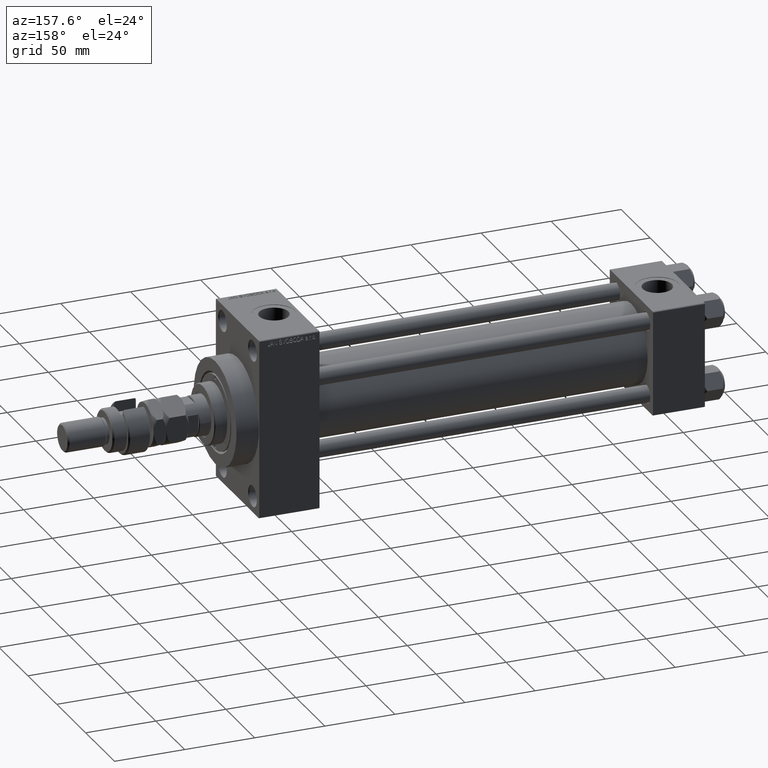
[diagram: clean part render]
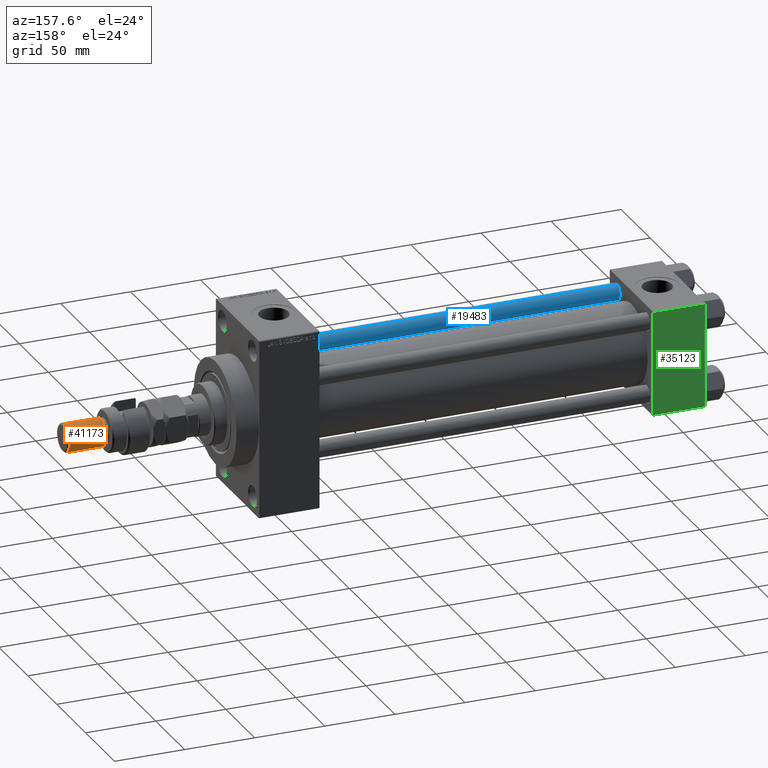
[diagram: same view with three faces highlighted in distinct colors, each labeled with its STEP entity id]
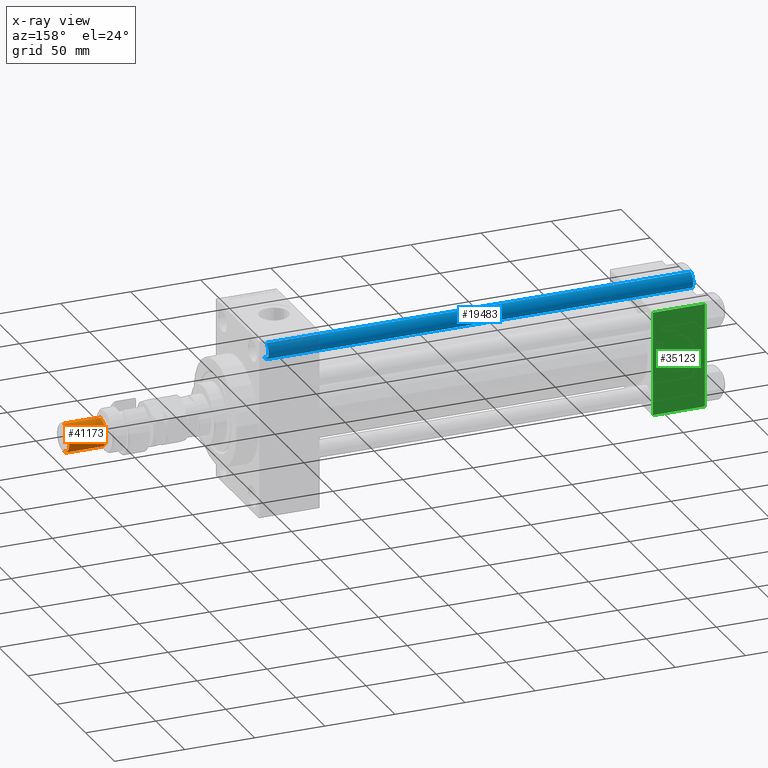
[diagram: x-ray of the same camera — body ghosted, the three highlighted faces saturated]
A machine part, auxiliary view with three faces highlighted in distinct colors.
The next image is the same camera in x-ray (body ghosted, the three faces saturated) — at least one of them is partly hidden behind the body in this view.
Their STEP definitions:

[orange] entity #41173 — the highlighted cylindrical surface (edge-blend (fillet) strip) has radius 10 mm, axis along (-1, -0, 0).
#1106 = DIRECTION ( 'NONE',  ( -1.000000000000000000, 0.000000000000000000, 0.000000000000000000 ) ) ;
#1311 = DIRECTION ( 'NONE',  ( -0.000000000000000000, -0.000000000000000000, -1.000000000000000000 ) ) ;
#3106 = LINE ( 'NONE', #30024, #35522 ) ;
#3700 = EDGE_CURVE ( 'NONE', #16770, #29111, #17318, .T. ) ;
#4936 = CYLINDRICAL_SURFACE ( 'NONE', #24008, 10.00000000000000000 ) ;
#10350 = AXIS2_PLACEMENT_3D ( 'NONE', #43727, #47770, #28703 ) ;
#14259 = CARTESIAN_POINT ( 'NONE',  ( 10.00000000000000000, 1.224646799147353256E-15, 29.00000000000000711 ) ) ;
#15725 = DIRECTION ( 'NONE',  ( -0.000000000000000000, -0.000000000000000000, 1.000000000000000000 ) ) ;
#16055 = CARTESIAN_POINT ( 'NONE',  ( -10.00000000000000000, 0.000000000000000000, 54.99999999999998579 ) ) ;
#16636 = VERTEX_POINT ( 'NONE', #37413 ) ;
#16770 = VERTEX_POINT ( 'NONE', #16055 ) ;
#16776 = ORIENTED_EDGE ( 'NONE', *, *, #46623, .T. ) ;
#17318 = LINE ( 'NONE', #28244, #36022 ) ;
#18086 = ORIENTED_EDGE ( 'NONE', *, *, #3700, .F. ) ;
#20437 = CARTESIAN_POINT ( 'NONE',  ( 0.000000000000000000, 0.000000000000000000, 56.00000000000000711 ) ) ;
#20883 = VERTEX_POINT ( 'NONE', #14259 ) ;
#22128 = CIRCLE ( 'NONE', #32669, 10.00000000000000000 ) ;
#22463 = EDGE_LOOP ( 'NONE', ( #16776, #30759, #38709, #18086 ) ) ;
#24008 = AXIS2_PLACEMENT_3D ( 'NONE', #20437, #35926, #1106 ) ;
#26890 = CARTESIAN_POINT ( 'NONE',  ( 0.000000000000000000, 0.000000000000000000, 29.00000000000000711 ) ) ;
#27402 = CIRCLE ( 'NONE', #10350, 10.00000000000000000 ) ;
#28049 = FACE_OUTER_BOUND ( 'NONE', #22463, .T. ) ;
#28244 = CARTESIAN_POINT ( 'NONE',  ( -10.00000000000000000, 0.000000000000000000, 56.00000000000000711 ) ) ;
#28703 = DIRECTION ( 'NONE',  ( 1.000000000000000000, 0.000000000000000000, 0.000000000000000000 ) ) ;
#29111 = VERTEX_POINT ( 'NONE', #45788 ) ;
#30024 = CARTESIAN_POINT ( 'NONE',  ( 10.00000000000000000, 1.224646799147353256E-15, 56.00000000000000711 ) ) ;
#30759 = ORIENTED_EDGE ( 'NONE', *, *, #49318, .T. ) ;
#31420 = EDGE_CURVE ( 'NONE', #20883, #29111, #22128, .T. ) ;
#32669 = AXIS2_PLACEMENT_3D ( 'NONE', #26890, #15725, #43153 ) ;
#35522 = VECTOR ( 'NONE', #47901, 1000.000000000000000 ) ;
#35926 = DIRECTION ( 'NONE',  ( -0.000000000000000000, -0.000000000000000000, -1.000000000000000000 ) ) ;
#36022 = VECTOR ( 'NONE', #1311, 1000.000000000000000 ) ;
#37413 = CARTESIAN_POINT ( 'NONE',  ( 10.00000000000000000, 1.224646799147353256E-15, 54.99999999999998579 ) ) ;
#38709 = ORIENTED_EDGE ( 'NONE', *, *, #31420, .T. ) ;
#41173 = ADVANCED_FACE ( 'NONE', ( #28049 ), #4936, .T. ) ;
#43153 = DIRECTION ( 'NONE',  ( 1.000000000000000000, 0.000000000000000000, 0.000000000000000000 ) ) ;
#43727 = CARTESIAN_POINT ( 'NONE',  ( 0.000000000000000000, 0.000000000000000000, 54.99999999999998579 ) ) ;
#45788 = CARTESIAN_POINT ( 'NONE',  ( -10.00000000000000000, 0.000000000000000000, 29.00000000000000711 ) ) ;
#46623 = EDGE_CURVE ( 'NONE', #16770, #16636, #27402, .T. ) ;
#47770 = DIRECTION ( 'NONE',  ( 0.000000000000000000, 0.000000000000000000, -1.000000000000000000 ) ) ;
#47901 = DIRECTION ( 'NONE',  ( -0.000000000000000000, -0.000000000000000000, -1.000000000000000000 ) ) ;
#49318 = EDGE_CURVE ( 'NONE', #16636, #20883, #3106, .T. ) ;

[blue] entity #19483 — the highlighted cylindrical surface (edge-blend (fillet) strip) has radius 6 mm, axis along (1, 0, 0).
#1121 = AXIS2_PLACEMENT_3D ( 'NONE', #28550, #9257, #36688 ) ;
#3309 = EDGE_CURVE ( 'NONE', #30546, #28479, #13300, .T. ) ;
#4923 = CYLINDRICAL_SURFACE ( 'NONE', #47720, 6.000000000000000888 ) ;
#5995 = ORIENTED_EDGE ( 'NONE', *, *, #3309, .T. ) ;
#6814 = CARTESIAN_POINT ( 'NONE',  ( -6.000000000000000888, 0.000000000000000000, 0.4999999999999449329 ) ) ;
#7578 = LINE ( 'NONE', #27371, #28662 ) ;
#7581 = EDGE_CURVE ( 'NONE', #28479, #41779, #32810, .T. ) ;
#9257 = DIRECTION ( 'NONE',  ( 0.000000000000000000, 0.000000000000000000, -1.000000000000000000 ) ) ;
#12069 = DIRECTION ( 'NONE',  ( -1.000000000000000000, 0.000000000000000000, 0.000000000000000000 ) ) ;
#12560 = FACE_OUTER_BOUND ( 'NONE', #13890, .T. ) ;
#12935 = CARTESIAN_POINT ( 'NONE',  ( 0.000000000000000000, 0.000000000000000000, 0.4999999999999449329 ) ) ;
#13300 = CIRCLE ( 'NONE', #1121, 6.000000000000000888 ) ;
#13633 = CIRCLE ( 'NONE', #30654, 6.000000000000000888 ) ;
#13890 = EDGE_LOOP ( 'NONE', ( #38842, #5995, #14931, #38941 ) ) ;
#14931 = ORIENTED_EDGE ( 'NONE', *, *, #7581, .T. ) ;
#17577 = DIRECTION ( 'NONE',  ( -0.000000000000000000, -0.000000000000000000, -1.000000000000000000 ) ) ;
#19483 = ADVANCED_FACE ( 'NONE', ( #12560 ), #4923, .T. ) ;
#20174 = DIRECTION ( 'NONE',  ( -0.000000000000000000, -0.000000000000000000, -1.000000000000000000 ) ) ;
#20422 = CARTESIAN_POINT ( 'NONE',  ( 0.000000000000000000, 0.000000000000000000, 304.0000000000000000 ) ) ;
#23835 = CARTESIAN_POINT ( 'NONE',  ( 6.000000000000000888, 7.347880794884120722E-16, 0.4999999999999449329 ) ) ;
#24638 = VERTEX_POINT ( 'NONE', #23835 ) ;
#27371 = CARTESIAN_POINT ( 'NONE',  ( 6.000000000000000888, 7.347880794884120722E-16, 304.0000000000000000 ) ) ;
#28403 = DIRECTION ( 'NONE',  ( -0.000000000000000000, -0.000000000000000000, 1.000000000000000000 ) ) ;
#28479 = VERTEX_POINT ( 'NONE', #50283 ) ;
#28550 = CARTESIAN_POINT ( 'NONE',  ( 0.000000000000000000, 0.000000000000000000, 303.5000000000000000 ) ) ;
#28662 = VECTOR ( 'NONE', #43130, 1000.000000000000000 ) ;
#28720 = VECTOR ( 'NONE', #17577, 1000.000000000000000 ) ;
#30546 = VERTEX_POINT ( 'NONE', #35264 ) ;
#30654 = AXIS2_PLACEMENT_3D ( 'NONE', #12935, #28403, #43922 ) ;
#32810 = LINE ( 'NONE', #44259, #28720 ) ;
#35264 = CARTESIAN_POINT ( 'NONE',  ( 6.000000000000000888, 7.347880794884120722E-16, 303.5000000000000000 ) ) ;
#36688 = DIRECTION ( 'NONE',  ( 1.000000000000000000, 0.000000000000000000, 0.000000000000000000 ) ) ;
#36995 = EDGE_CURVE ( 'NONE', #30546, #24638, #7578, .T. ) ;
#38842 = ORIENTED_EDGE ( 'NONE', *, *, #36995, .F. ) ;
#38941 = ORIENTED_EDGE ( 'NONE', *, *, #49833, .T. ) ;
#41779 = VERTEX_POINT ( 'NONE', #6814 ) ;
#43130 = DIRECTION ( 'NONE',  ( -0.000000000000000000, -0.000000000000000000, -1.000000000000000000 ) ) ;
#43922 = DIRECTION ( 'NONE',  ( 1.000000000000000000, 0.000000000000000000, 0.000000000000000000 ) ) ;
#44259 = CARTESIAN_POINT ( 'NONE',  ( -6.000000000000000888, 0.000000000000000000, 304.0000000000000000 ) ) ;
#47720 = AXIS2_PLACEMENT_3D ( 'NONE', #20422, #20174, #12069 ) ;
#49833 = EDGE_CURVE ( 'NONE', #41779, #24638, #13633, .T. ) ;
#50283 = CARTESIAN_POINT ( 'NONE',  ( -6.000000000000000888, 0.000000000000000000, 303.5000000000000000 ) ) ;

[green] entity #35123 — the highlighted planar face has unit normal (0, 1, 0).
#1447 = EDGE_CURVE ( 'NONE', #2928, #15616, #47173, .T. ) ;
#1869 = CARTESIAN_POINT ( 'NONE',  ( 0.000000000000000000, 37.49999999999999289, -36.99999999999998579 ) ) ;
#2131 = VECTOR ( 'NONE', #32163, 1000.000000000000000 ) ;
#2928 = VERTEX_POINT ( 'NONE', #10945 ) ;
#6701 = ORIENTED_EDGE ( 'NONE', *, *, #12687, .T. ) ;
#7521 = LINE ( 'NONE', #43319, #10034 ) ;
#10034 = VECTOR ( 'NONE', #15153, 1000.000000000000000 ) ;
#10945 = CARTESIAN_POINT ( 'NONE',  ( 0.000000000000000000, 37.49999999999999289, 37.00000000000000000 ) ) ;
#12381 = CARTESIAN_POINT ( 'NONE',  ( 0.000000000000000000, 37.49999999999999289, 37.50000000000000000 ) ) ;
#12470 = LINE ( 'NONE', #27946, #37326 ) ;
#12687 = EDGE_CURVE ( 'NONE', #47744, #25572, #38807, .T. ) ;
#15153 = DIRECTION ( 'NONE',  ( 1.000000000000000000, 0.000000000000000000, 0.000000000000000000 ) ) ;
#15286 = DIRECTION ( 'NONE',  ( 0.000000000000000000, -0.000000000000000000, 1.000000000000000000 ) ) ;
#15616 = VERTEX_POINT ( 'NONE', #1869 ) ;
#19215 = ORIENTED_EDGE ( 'NONE', *, *, #1447, .F. ) ;
#20334 = DIRECTION ( 'NONE',  ( -1.000000000000000000, 0.000000000000000000, 0.000000000000000000 ) ) ;
#25166 = EDGE_CURVE ( 'NONE', #25572, #15616, #12470, .T. ) ;
#25572 = VERTEX_POINT ( 'NONE', #32705 ) ;
#27946 = CARTESIAN_POINT ( 'NONE',  ( 37.00000000000000000, 37.49999999999999289, -36.99999999999998579 ) ) ;
#30103 = EDGE_LOOP ( 'NONE', ( #6701, #43136, #19215, #45682 ) ) ;
#30237 = CARTESIAN_POINT ( 'NONE',  ( 37.00000000000000000, 37.49999999999999289, 37.50000000000000000 ) ) ;
#30249 = VECTOR ( 'NONE', #39566, 1000.000000000000000 ) ;
#30377 = AXIS2_PLACEMENT_3D ( 'NONE', #30237, #45499, #15286 ) ;
#32163 = DIRECTION ( 'NONE',  ( 0.000000000000000000, 0.000000000000000000, -1.000000000000000000 ) ) ;
#32705 = CARTESIAN_POINT ( 'NONE',  ( 37.00000000000000000, 37.49999999999999289, -36.99999999999998579 ) ) ;
#34070 = PLANE ( 'NONE',  #30377 ) ;
#35123 = ADVANCED_FACE ( 'NONE', ( #46269 ), #34070, .T. ) ;
#35721 = CARTESIAN_POINT ( 'NONE',  ( 37.00000000000000000, 37.49999999999999289, 37.00000000000000000 ) ) ;
#37326 = VECTOR ( 'NONE', #20334, 1000.000000000000000 ) ;
#37457 = EDGE_CURVE ( 'NONE', #2928, #47744, #7521, .T. ) ;
#38807 = LINE ( 'NONE', #39305, #2131 ) ;
#39305 = CARTESIAN_POINT ( 'NONE',  ( 37.00000000000000000, 37.49999999999999289, 37.50000000000000000 ) ) ;
#39566 = DIRECTION ( 'NONE',  ( 0.000000000000000000, 0.000000000000000000, -1.000000000000000000 ) ) ;
#43136 = ORIENTED_EDGE ( 'NONE', *, *, #25166, .T. ) ;
#43319 = CARTESIAN_POINT ( 'NONE',  ( 37.00000000000000000, 37.49999999999999289, 37.00000000000000000 ) ) ;
#45499 = DIRECTION ( 'NONE',  ( -0.000000000000000000, 1.000000000000000000, 0.000000000000000000 ) ) ;
#45682 = ORIENTED_EDGE ( 'NONE', *, *, #37457, .T. ) ;
#46269 = FACE_OUTER_BOUND ( 'NONE', #30103, .T. ) ;
#47173 = LINE ( 'NONE', #12381, #30249 ) ;
#47744 = VERTEX_POINT ( 'NONE', #35721 ) ;